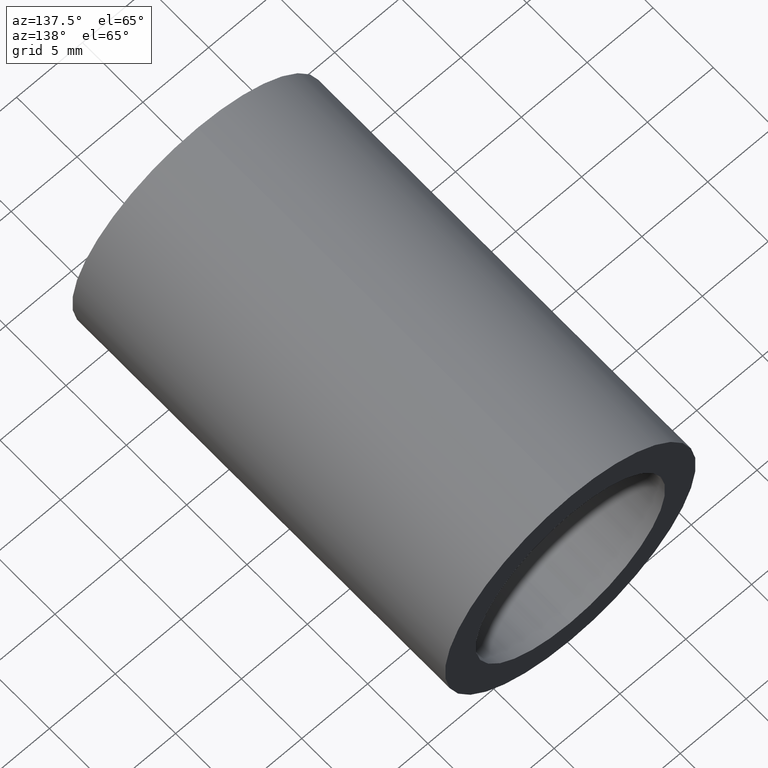
[diagram: clean part render]
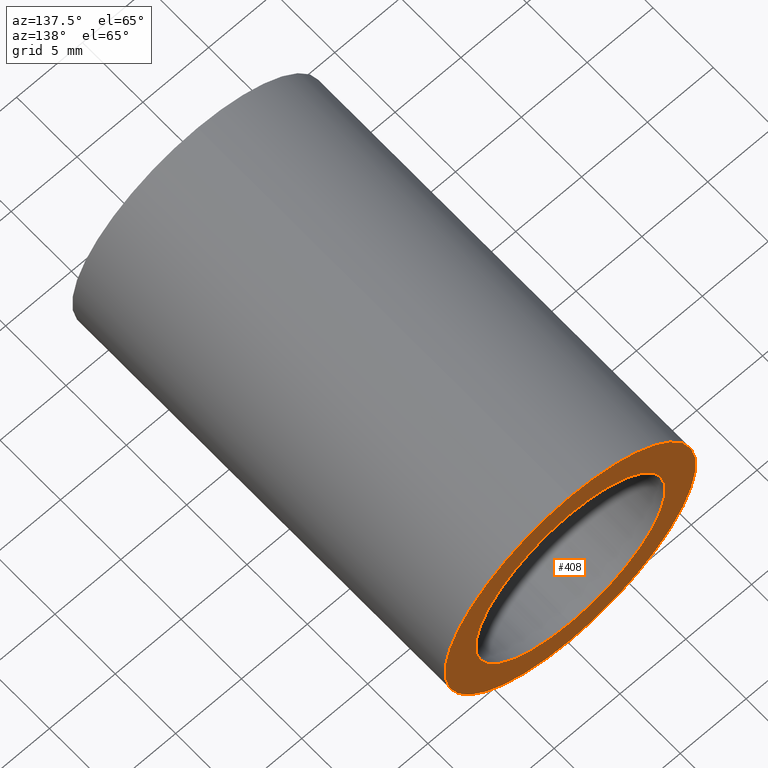
[diagram: same view with one face highlighted and labeled with its STEP entity id]
A machine part, auxiliary view. The second image highlights one B-rep face of the part: STEP entity #408.
In plain terms, the highlighted planar face has unit normal (0, -1, 0).
Its self-contained STEP definition (entity closure, byte-faithful):
#36 = DIRECTION ( 'NONE',  ( -0.0000000000000000000, 1.000000000000000000, -0.0000000000000000000 ) ) ;
#42 = DIRECTION ( 'NONE',  ( 0.0000000000000000000, 0.0000000000000000000, 1.000000000000000000 ) ) ;
#64 = ORIENTED_EDGE ( 'NONE', *, *, #473, .T. ) ;
#69 = AXIS2_PLACEMENT_3D ( 'NONE', #616, #36, #42 ) ;
#72 = ORIENTED_EDGE ( 'NONE', *, *, #289, .F. ) ;
#73 = DIRECTION ( 'NONE',  ( 0.0000000000000000000, -1.000000000000000000, 0.0000000000000000000 ) ) ;
#74 = CIRCLE ( 'NONE', #394, 7.200000000000014400 ) ;
#77 = DIRECTION ( 'NONE',  ( 0.0000000000000000000, -0.0000000000000000000, -1.000000000000000000 ) ) ;
#79 = DIRECTION ( 'NONE',  ( 0.0000000000000000000, 0.0000000000000000000, 1.000000000000000000 ) ) ;
#101 = CIRCLE ( 'NONE', #279, 9.525000000000019900 ) ;
#109 = CARTESIAN_POINT ( 'NONE',  ( 0.0000000000000000000, 30.89999999999998400, 7.200000000000014400 ) ) ;
#117 = CARTESIAN_POINT ( 'NONE',  ( 0.0000000000000000000, 30.89999999999998400, 0.0000000000000000000 ) ) ;
#124 = DIRECTION ( 'NONE',  ( -0.0000000000000000000, 1.000000000000000000, -0.0000000000000000000 ) ) ;
#125 = EDGE_CURVE ( 'NONE', #259, #469, #298, .T. ) ;
#127 = CARTESIAN_POINT ( 'NONE',  ( 0.0000000000000000000, 30.89999999999998400, 0.0000000000000000000 ) ) ;
#157 = EDGE_LOOP ( 'NONE', ( #359, #64 ) ) ;
#160 = PLANE ( 'NONE',  #591 ) ;
#167 = FACE_BOUND ( 'NONE', #221, .T. ) ;
#193 = DIRECTION ( 'NONE',  ( 0.0000000000000000000, 0.0000000000000000000, 1.000000000000000000 ) ) ;
#203 = ORIENTED_EDGE ( 'NONE', *, *, #125, .F. ) ;
#221 = EDGE_LOOP ( 'NONE', ( #203, #72 ) ) ;
#254 = CARTESIAN_POINT ( 'NONE',  ( 8.817456953860959100E-016, 30.89999999999998400, -7.200000000000014400 ) ) ;
#259 = VERTEX_POINT ( 'NONE', #109 ) ;
#279 = AXIS2_PLACEMENT_3D ( 'NONE', #127, #124, #79 ) ;
#289 = EDGE_CURVE ( 'NONE', #469, #259, #74, .T. ) ;
#296 = CARTESIAN_POINT ( 'NONE',  ( 7.200000000000014400, 30.89999999999998400, 0.0000000000000000000 ) ) ;
#298 = CIRCLE ( 'NONE', #69, 7.200000000000014400 ) ;
#307 = VERTEX_POINT ( 'NONE', #329 ) ;
#329 = CARTESIAN_POINT ( 'NONE',  ( 1.166476076187856400E-015, 30.89999999999998400, -9.525000000000019900 ) ) ;
#356 = AXIS2_PLACEMENT_3D ( 'NONE', #117, #432, #486 ) ;
#358 = FACE_OUTER_BOUND ( 'NONE', #157, .T. ) ;
#359 = ORIENTED_EDGE ( 'NONE', *, *, #603, .T. ) ;
#373 = CIRCLE ( 'NONE', #356, 9.525000000000019900 ) ;
#394 = AXIS2_PLACEMENT_3D ( 'NONE', #418, #422, #193 ) ;
#408 = ADVANCED_FACE ( 'NONE', ( #167, #358 ), #160, .F. ) ;
#418 = CARTESIAN_POINT ( 'NONE',  ( 0.0000000000000000000, 30.89999999999998400, 0.0000000000000000000 ) ) ;
#422 = DIRECTION ( 'NONE',  ( -0.0000000000000000000, 1.000000000000000000, -0.0000000000000000000 ) ) ;
#432 = DIRECTION ( 'NONE',  ( -0.0000000000000000000, 1.000000000000000000, -0.0000000000000000000 ) ) ;
#434 = VERTEX_POINT ( 'NONE', #592 ) ;
#469 = VERTEX_POINT ( 'NONE', #254 ) ;
#473 = EDGE_CURVE ( 'NONE', #307, #434, #101, .T. ) ;
#486 = DIRECTION ( 'NONE',  ( 0.0000000000000000000, 0.0000000000000000000, 1.000000000000000000 ) ) ;
#591 = AXIS2_PLACEMENT_3D ( 'NONE', #296, #73, #77 ) ;
#592 = CARTESIAN_POINT ( 'NONE',  ( 0.0000000000000000000, 30.89999999999998400, 9.525000000000019900 ) ) ;
#603 = EDGE_CURVE ( 'NONE', #434, #307, #373, .T. ) ;
#616 = CARTESIAN_POINT ( 'NONE',  ( 0.0000000000000000000, 30.89999999999998400, 0.0000000000000000000 ) ) ;